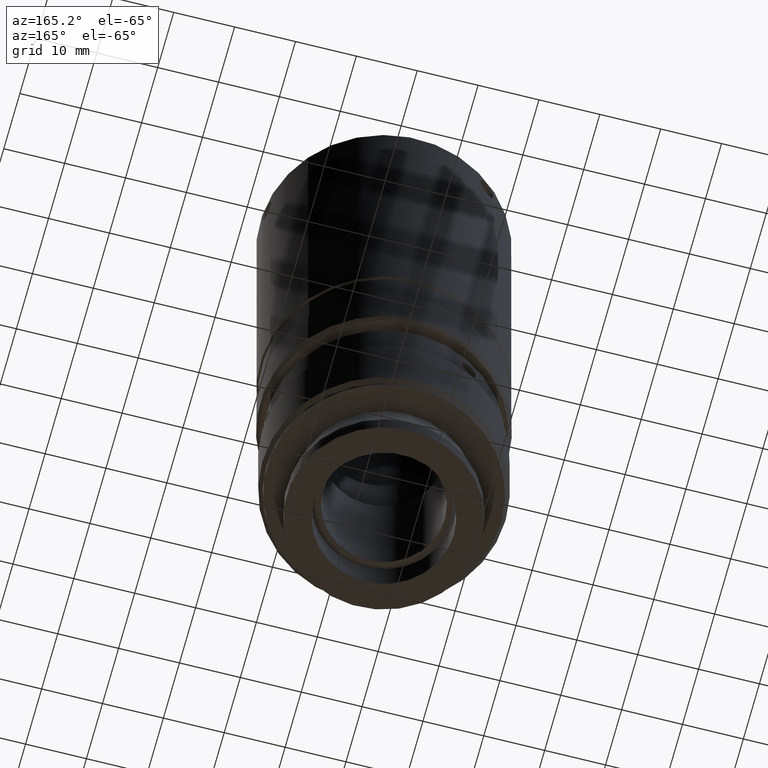
[diagram: clean part render]
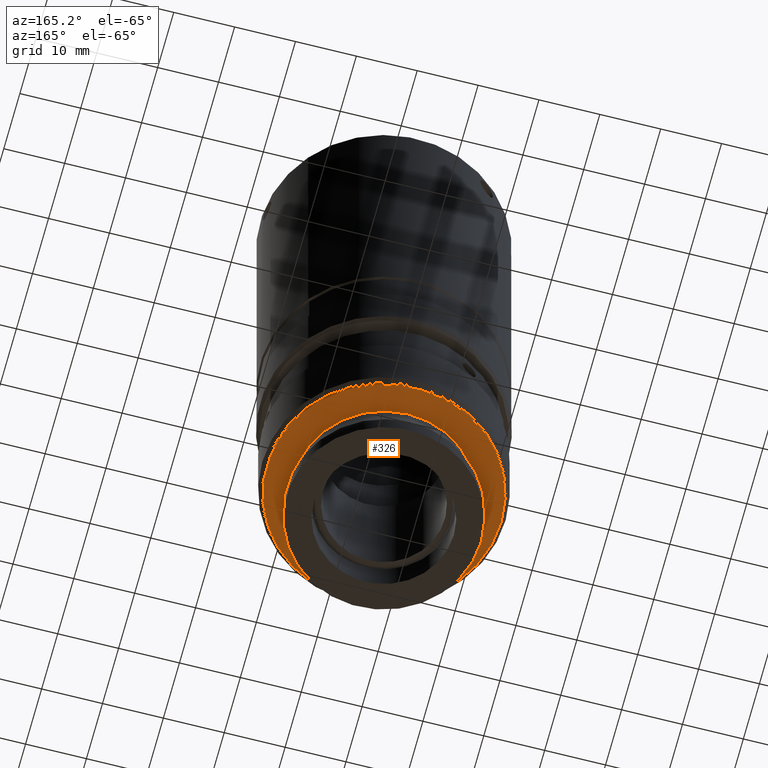
[diagram: same view with one face highlighted and labeled with its STEP entity id]
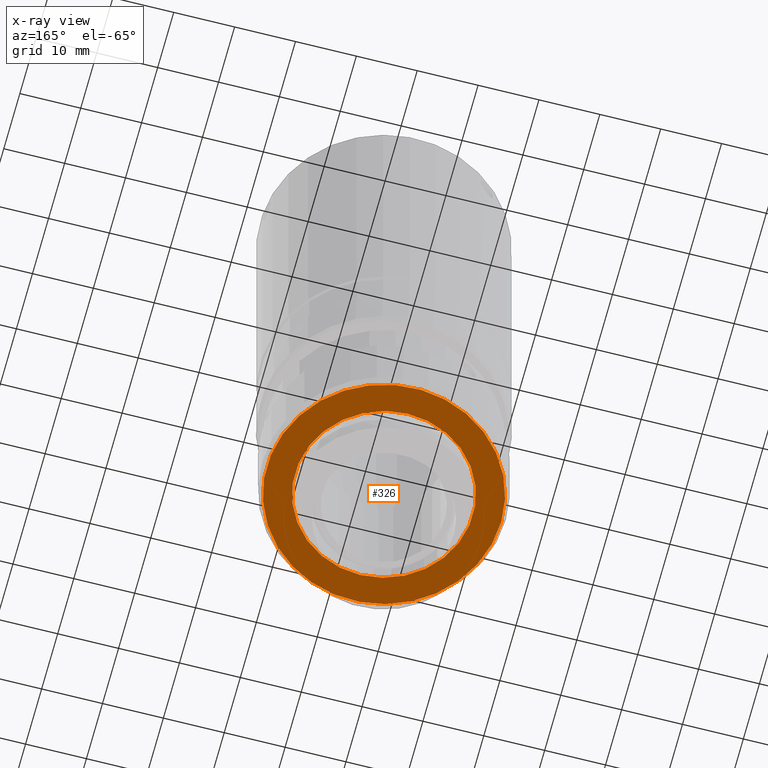
[diagram: x-ray of the same camera — body ghosted, the highlighted face saturated]
A machine part, auxiliary view. The second image highlights one B-rep face of the part: STEP entity #326.
The next image is the same camera in x-ray: the body ghosted, the highlighted face saturated — about 0% of this face is hidden behind the body in this view.
In plain terms, the highlighted planar face has unit normal (0, 0, -1).
Its self-contained STEP definition (entity closure, byte-faithful):
#106 = DIRECTION ( 'NONE',  ( 0.000000000000000000, 1.000000000000000000, 0.000000000000000000 ) ) ;
#168 = CARTESIAN_POINT ( 'NONE',  ( -24.38631314343066947, 2.012163911859719434, 33.99999835372158685 ) ) ;
#190 = AXIS2_PLACEMENT_3D ( 'NONE', #638, #1682, #268 ) ;
#268 = DIRECTION ( 'NONE',  ( -1.000000000000000000, 0.000000000000000000, -1.224646799147353207E-16 ) ) ;
#326 = ADVANCED_FACE ( 'NONE', ( #1189, #523 ), #679, .T. ) ;
#350 = DIRECTION ( 'NONE',  ( -1.000000000000000000, 0.000000000000000000, 0.000000000000000000 ) ) ;
#351 = AXIS2_PLACEMENT_3D ( 'NONE', #1128, #1666, #350 ) ;
#409 = EDGE_LOOP ( 'NONE', ( #646 ) ) ;
#432 = CARTESIAN_POINT ( 'NONE',  ( -5.136313143430670358, 16.62695476508963921, 33.99999835372159396 ) ) ;
#523 = FACE_OUTER_BOUND ( 'NONE', #1546, .T. ) ;
#588 = EDGE_CURVE ( 'NONE', #1170, #1170, #856, .T. ) ;
#638 = CARTESIAN_POINT ( 'NONE',  ( 9.478477709799250306, 2.012163911859719434, 33.99999835372159396 ) ) ;
#646 = ORIENTED_EDGE ( 'NONE', *, *, #588, .F. ) ;
#679 = PLANE ( 'NONE',  #190 ) ;
#843 = VERTEX_POINT ( 'NONE', #168 ) ;
#856 = CIRCLE ( 'NONE', #947, 14.61479085322992155 ) ;
#921 = ORIENTED_EDGE ( 'NONE', *, *, #1238, .T. ) ;
#947 = AXIS2_PLACEMENT_3D ( 'NONE', #1011, #1151, #106 ) ;
#953 = CIRCLE ( 'NONE', #351, 19.25000000000000000 ) ;
#1011 = CARTESIAN_POINT ( 'NONE',  ( -5.136313143430670358, 2.012163911859718546, 33.99999835372159396 ) ) ;
#1128 = CARTESIAN_POINT ( 'NONE',  ( -5.136313143430671246, 2.012163911859719434, 33.99999835372158685 ) ) ;
#1151 = DIRECTION ( 'NONE',  ( 0.000000000000000000, 1.084202172485504434E-16, -1.000000000000000000 ) ) ;
#1170 = VERTEX_POINT ( 'NONE', #432 ) ;
#1189 = FACE_BOUND ( 'NONE', #409, .T. ) ;
#1238 = EDGE_CURVE ( 'NONE', #843, #843, #953, .T. ) ;
#1546 = EDGE_LOOP ( 'NONE', ( #921 ) ) ;
#1666 = DIRECTION ( 'NONE',  ( 1.224646799147353207E-16, 0.000000000000000000, -1.000000000000000000 ) ) ;
#1682 = DIRECTION ( 'NONE',  ( 1.224646799147353207E-16, 0.000000000000000000, -1.000000000000000000 ) ) ;